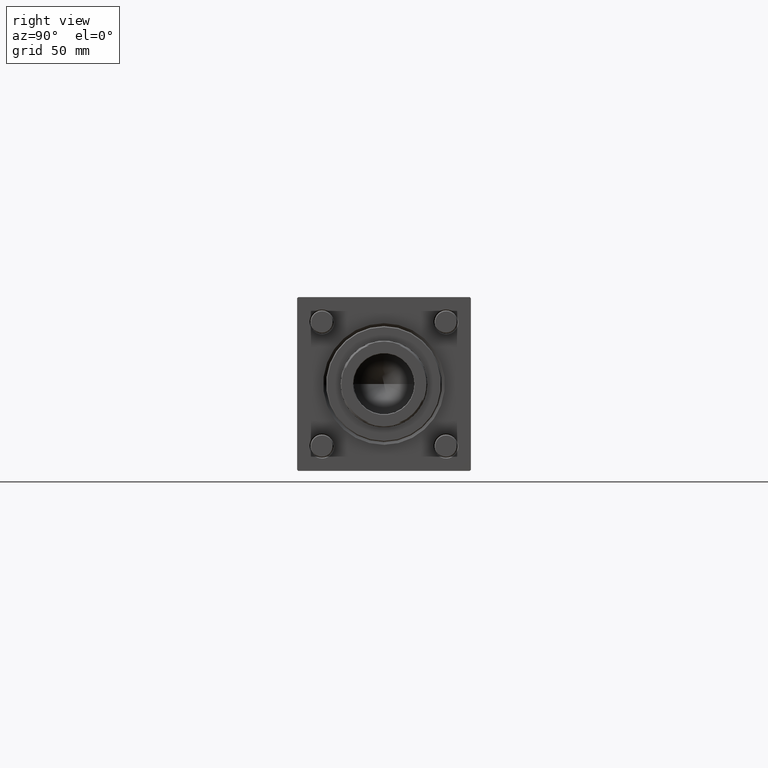
[diagram: clean part render]
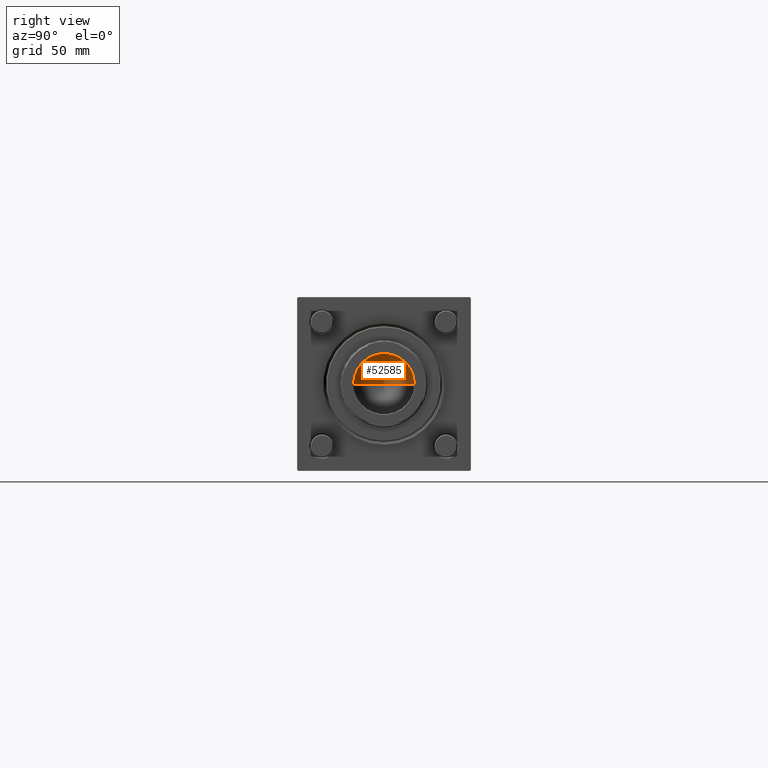
[diagram: same view with one face highlighted and labeled with its STEP entity id]
A machine part, right view. The second image highlights one B-rep face of the part: STEP entity #52585.
In plain terms, the highlighted conical surface has half-angle 59 deg.
Its self-contained STEP definition (entity closure, byte-faithful):
#4749 = DIRECTION ( 'NONE',  ( -0.000000000000000000, -0.000000000000000000, 1.000000000000000000 ) ) ;
#5484 = EDGE_LOOP ( 'NONE', ( #28322, #19738, #36821 ) ) ;
#7540 = CARTESIAN_POINT ( 'NONE',  ( -15.74999999999998934, 1.928818708657080161E-15, 235.0000000000000000 ) ) ;
#8642 = AXIS2_PLACEMENT_3D ( 'NONE', #28647, #37223, #45836 ) ;
#9019 = DIRECTION ( 'NONE',  ( -0.8571673007021112234, 1.049727191138617340E-16, 0.5150380749100560429 ) ) ;
#9341 = FACE_OUTER_BOUND ( 'NONE', #5484, .T. ) ;
#12702 = EDGE_CURVE ( 'NONE', #47900, #35144, #18430, .T. ) ;
#12937 = CARTESIAN_POINT ( 'NONE',  ( -1.584115414415908206E-14, 0.000000000000000000, 225.5364452503158930 ) ) ;
#14553 = VECTOR ( 'NONE', #22163, 1000.000000000000000 ) ;
#18430 = LINE ( 'NONE', #39908, #14553 ) ;
#19738 = ORIENTED_EDGE ( 'NONE', *, *, #22246, .T. ) ;
#22163 = DIRECTION ( 'NONE',  ( 0.8571673007021112234, 0.000000000000000000, 0.5150380749100560429 ) ) ;
#22246 = EDGE_CURVE ( 'NONE', #47900, #48977, #22492, .T. ) ;
#22492 = LINE ( 'NONE', #45113, #34822 ) ;
#26830 = CARTESIAN_POINT ( 'NONE',  ( 0.000000000000000000, 0.000000000000000000, 235.0000000000000000 ) ) ;
#28322 = ORIENTED_EDGE ( 'NONE', *, *, #12702, .F. ) ;
#28647 = CARTESIAN_POINT ( 'NONE',  ( 0.000000000000000000, 0.000000000000000000, 235.0000000000000000 ) ) ;
#34251 = CONICAL_SURFACE ( 'NONE', #36072, 15.74999999999998934, 1.029744258676652313 ) ;
#34822 = VECTOR ( 'NONE', #9019, 1000.000000000000000 ) ;
#35144 = VERTEX_POINT ( 'NONE', #55919 ) ;
#36072 = AXIS2_PLACEMENT_3D ( 'NONE', #26830, #4749, #43443 ) ;
#36821 = ORIENTED_EDGE ( 'NONE', *, *, #52099, .T. ) ;
#37223 = DIRECTION ( 'NONE',  ( -0.000000000000000000, -0.000000000000000000, 1.000000000000000000 ) ) ;
#39715 = CIRCLE ( 'NONE', #8642, 15.74999999999998934 ) ;
#39908 = CARTESIAN_POINT ( 'NONE',  ( 15.74999999999998934, 0.000000000000000000, 235.0000000000000000 ) ) ;
#43443 = DIRECTION ( 'NONE',  ( 1.000000000000000000, 0.000000000000000000, 0.000000000000000000 ) ) ;
#45113 = CARTESIAN_POINT ( 'NONE',  ( -15.74999999999998934, 1.928818708657080161E-15, 235.0000000000000000 ) ) ;
#45836 = DIRECTION ( 'NONE',  ( 1.000000000000000000, 0.000000000000000000, 0.000000000000000000 ) ) ;
#47900 = VERTEX_POINT ( 'NONE', #12937 ) ;
#48977 = VERTEX_POINT ( 'NONE', #7540 ) ;
#52099 = EDGE_CURVE ( 'NONE', #48977, #35144, #39715, .T. ) ;
#52585 = ADVANCED_FACE ( 'NONE', ( #9341 ), #34251, .F. ) ;
#55919 = CARTESIAN_POINT ( 'NONE',  ( 15.74999999999998934, 0.000000000000000000, 235.0000000000000000 ) ) ;